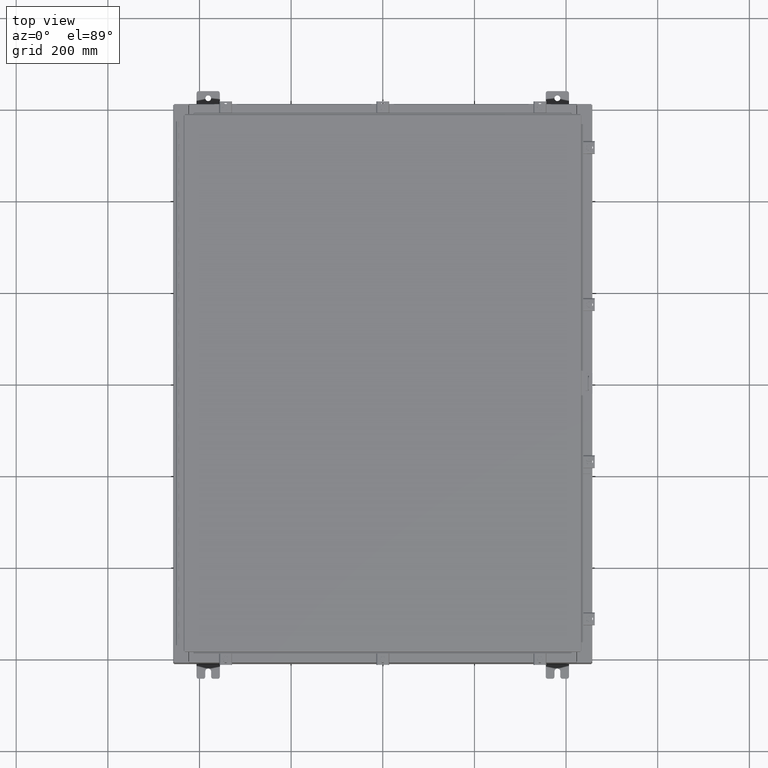
[diagram: clean part render]
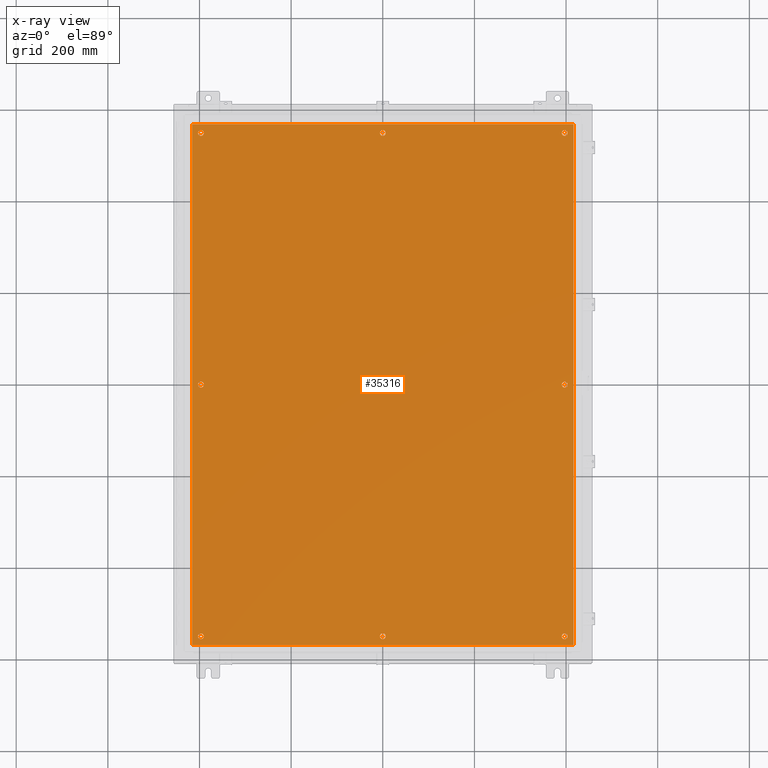
[diagram: x-ray — body ghosted, one internal face saturated and labeled with its STEP entity id]
A machine part, top view, then the same camera in x-ray: the body is ghosted and one INTERNAL B-rep face — a face not visible from any outside direction — is saturated and labeled: STEP entity #35316.
In plain terms, the highlighted planar face has unit normal (0, 0, -1).
Its self-contained STEP definition (entity closure, byte-faithful):
#610 = AXIS2_PLACEMENT_3D ( 'NONE', #8718, #38570, #13018 ) ;
#840 = CIRCLE ( 'NONE', #24710, 0.2499999999999987000 ) ;
#996 = ORIENTED_EDGE ( 'NONE', *, *, #33149, .T. ) ;
#1314 = AXIS2_PLACEMENT_3D ( 'NONE', #41533, #15989, #45883 ) ;
#1486 = DIRECTION ( 'NONE',  ( -1.000000000000000000, 0.0000000000000000000, 0.0000000000000000000 ) ) ;
#1511 = VERTEX_POINT ( 'NONE', #41468 ) ;
#2261 = CARTESIAN_POINT ( 'NONE',  ( 15.37500000000000500, -21.62500000000000400, -0.1040000000000000400 ) ) ;
#2413 = VERTEX_POINT ( 'NONE', #19910 ) ;
#2435 = EDGE_LOOP ( 'NONE', ( #25796, #27888 ) ) ;
#2675 = VERTEX_POINT ( 'NONE', #21924 ) ;
#2761 = DIRECTION ( 'NONE',  ( -0.0000000000000000000, -0.0000000000000000000, 1.000000000000000000 ) ) ;
#3116 = CARTESIAN_POINT ( 'NONE',  ( 15.62500000000000400, -21.62500000000000400, -0.1040000000000000400 ) ) ;
#3354 = ORIENTED_EDGE ( 'NONE', *, *, #4375, .T. ) ;
#3392 = ORIENTED_EDGE ( 'NONE', *, *, #46634, .T. ) ;
#4115 = ORIENTED_EDGE ( 'NONE', *, *, #7966, .F. ) ;
#4375 = EDGE_CURVE ( 'NONE', #52993, #14118, #15577, .T. ) ;
#4449 = AXIS2_PLACEMENT_3D ( 'NONE', #8026, #37884, #12323 ) ;
#6004 = ORIENTED_EDGE ( 'NONE', *, *, #40696, .F. ) ;
#6319 = CARTESIAN_POINT ( 'NONE',  ( 15.37500000000000000, 3.027752532102204900E-015, -0.1040000000000000400 ) ) ;
#6542 = DIRECTION ( 'NONE',  ( -0.0000000000000000000, -0.0000000000000000000, 1.000000000000000000 ) ) ;
#7005 = FACE_BOUND ( 'NONE', #51511, .T. ) ;
#7158 = VERTEX_POINT ( 'NONE', #23106 ) ;
#7402 = DIRECTION ( 'NONE',  ( -1.000000000000000000, 0.0000000000000000000, 0.0000000000000000000 ) ) ;
#7966 = EDGE_CURVE ( 'NONE', #1511, #7158, #32630, .T. ) ;
#8026 = CARTESIAN_POINT ( 'NONE',  ( 0.0000000000000000000, 0.0000000000000000000, -0.1040000000000000400 ) ) ;
#8055 = CIRCLE ( 'NONE', #28481, 0.2499999999999987000 ) ;
#8336 = VERTEX_POINT ( 'NONE', #52884 ) ;
#8461 = CARTESIAN_POINT ( 'NONE',  ( 0.2500000000000011700, -21.62500000000000400, -0.1040000000000000400 ) ) ;
#8510 = ORIENTED_EDGE ( 'NONE', *, *, #11018, .T. ) ;
#8705 = CARTESIAN_POINT ( 'NONE',  ( -0.2500000000000011700, -21.62500000000000400, -0.1040000000000000400 ) ) ;
#8718 = CARTESIAN_POINT ( 'NONE',  ( 15.62500000000000400, 21.62500000000000400, -0.1040000000000000400 ) ) ;
#9096 = CARTESIAN_POINT ( 'NONE',  ( 16.50000000000000700, 22.38300000000000300, -0.1040000000000009900 ) ) ;
#10294 = CARTESIAN_POINT ( 'NONE',  ( 0.0000000000000000000, -21.62500000000000400, -0.1040000000000000400 ) ) ;
#10697 = EDGE_CURVE ( 'NONE', #41998, #2675, #46167, .T. ) ;
#11018 = EDGE_CURVE ( 'NONE', #44184, #30400, #46816, .T. ) ;
#11133 = AXIS2_PLACEMENT_3D ( 'NONE', #10294, #40139, #14573 ) ;
#11225 = EDGE_CURVE ( 'NONE', #13128, #48782, #44752, .T. ) ;
#11231 = DIRECTION ( 'NONE',  ( -0.0000000000000000000, -0.0000000000000000000, 1.000000000000000000 ) ) ;
#11495 = CARTESIAN_POINT ( 'NONE',  ( -15.62500000000000500, 21.62500000000000400, -0.1040000000000000400 ) ) ;
#11683 = VERTEX_POINT ( 'NONE', #35888 ) ;
#11765 = LINE ( 'NONE', #9096, #23131 ) ;
#11860 = CARTESIAN_POINT ( 'NONE',  ( 15.87500000000000200, -21.62500000000000400, -0.1040000000000000400 ) ) ;
#12323 = DIRECTION ( 'NONE',  ( -1.000000000000000000, 0.0000000000000000000, -0.0000000000000000000 ) ) ;
#12398 = CIRCLE ( 'NONE', #23739, 0.2500000000000008900 ) ;
#12607 = VECTOR ( 'NONE', #45417, 39.37007874015748100 ) ;
#12899 = CARTESIAN_POINT ( 'NONE',  ( -15.62500000000000500, 21.62500000000000400, -0.1040000000000000400 ) ) ;
#13018 = DIRECTION ( 'NONE',  ( -1.000000000000000000, 0.0000000000000000000, 0.0000000000000000000 ) ) ;
#13070 = VERTEX_POINT ( 'NONE', #8705 ) ;
#13128 = VERTEX_POINT ( 'NONE', #26060 ) ;
#13291 = CARTESIAN_POINT ( 'NONE',  ( -15.62500000000000200, -8.298848852119578500E-016, -0.1040000000000000400 ) ) ;
#14118 = VERTEX_POINT ( 'NONE', #29694 ) ;
#14519 = CARTESIAN_POINT ( 'NONE',  ( 15.62500000000000400, 21.62500000000000400, -0.1040000000000000400 ) ) ;
#14573 = DIRECTION ( 'NONE',  ( -1.000000000000000000, 0.0000000000000000000, 0.0000000000000000000 ) ) ;
#15140 = CARTESIAN_POINT ( 'NONE',  ( 0.0000000000000000000, 21.62500000000000400, -0.1040000000000000400 ) ) ;
#15534 = CARTESIAN_POINT ( 'NONE',  ( 16.38300000000000600, -22.38300000000000300, -0.1040000000000008600 ) ) ;
#15577 = CIRCLE ( 'NONE', #610, 0.2499999999999987000 ) ;
#15797 = DIRECTION ( 'NONE',  ( -1.000000000000000000, 0.0000000000000000000, 0.0000000000000000000 ) ) ;
#15989 = DIRECTION ( 'NONE',  ( -0.0000000000000000000, -0.0000000000000000000, 1.000000000000000000 ) ) ;
#16967 = ORIENTED_EDGE ( 'NONE', *, *, #51983, .T. ) ;
#16988 = ORIENTED_EDGE ( 'NONE', *, *, #28294, .T. ) ;
#17179 = DIRECTION ( 'NONE',  ( -1.000000000000000000, 0.0000000000000000000, 0.0000000000000000000 ) ) ;
#17580 = DIRECTION ( 'NONE',  ( -1.000000000000000000, 0.0000000000000000000, 0.0000000000000000000 ) ) ;
#18280 = EDGE_CURVE ( 'NONE', #48782, #13128, #52221, .T. ) ;
#18343 = FACE_BOUND ( 'NONE', #41148, .T. ) ;
#18827 = DIRECTION ( 'NONE',  ( -1.000000000000000000, 0.0000000000000000000, 0.0000000000000000000 ) ) ;
#19064 = AXIS2_PLACEMENT_3D ( 'NONE', #32095, #6542, #36393 ) ;
#19457 = DIRECTION ( 'NONE',  ( -1.000000000000000000, 0.0000000000000000000, 0.0000000000000000000 ) ) ;
#19910 = CARTESIAN_POINT ( 'NONE',  ( -16.38299999999999600, -22.38300000000000300, -0.1040000000000009900 ) ) ;
#20151 = ORIENTED_EDGE ( 'NONE', *, *, #49994, .T. ) ;
#20227 = VERTEX_POINT ( 'NONE', #39741 ) ;
#21059 = EDGE_CURVE ( 'NONE', #2413, #1511, #37185, .T. ) ;
#21205 = CIRCLE ( 'NONE', #48691, 0.2499999999999987000 ) ;
#21358 = ORIENTED_EDGE ( 'NONE', *, *, #34859, .T. ) ;
#21893 = AXIS2_PLACEMENT_3D ( 'NONE', #28354, #2761, #32618 ) ;
#21924 = CARTESIAN_POINT ( 'NONE',  ( -15.37500000000000500, -21.62500000000000400, -0.1040000000000000400 ) ) ;
#22297 = CARTESIAN_POINT ( 'NONE',  ( 0.2499999999999998600, 21.62500000000000400, -0.1040000000000000400 ) ) ;
#22685 = CARTESIAN_POINT ( 'NONE',  ( 15.37500000000000500, 21.62500000000000400, -0.1040000000000000400 ) ) ;
#22919 = DIRECTION ( 'NONE',  ( -0.0000000000000000000, -0.0000000000000000000, 1.000000000000000000 ) ) ;
#23106 = CARTESIAN_POINT ( 'NONE',  ( 16.38300000000000600, 22.38300000000000300, -0.1040000000000008600 ) ) ;
#23131 = VECTOR ( 'NONE', #34627, 39.37007874015748100 ) ;
#23363 = ORIENTED_EDGE ( 'NONE', *, *, #11225, .T. ) ;
#23489 = AXIS2_PLACEMENT_3D ( 'NONE', #12899, #42733, #17179 ) ;
#23739 = AXIS2_PLACEMENT_3D ( 'NONE', #13291, #43143, #17580 ) ;
#24710 = AXIS2_PLACEMENT_3D ( 'NONE', #36804, #11231, #41070 ) ;
#25109 = EDGE_CURVE ( 'NONE', #46491, #11683, #49626, .T. ) ;
#25188 = CARTESIAN_POINT ( 'NONE',  ( -15.62500000000000400, -21.62500000000000400, -0.1040000000000000400 ) ) ;
#25320 = CARTESIAN_POINT ( 'NONE',  ( 15.62500000000000200, 2.997136362123521200E-015, -0.1040000000000000400 ) ) ;
#25796 = ORIENTED_EDGE ( 'NONE', *, *, #37311, .T. ) ;
#25850 = VECTOR ( 'NONE', #38094, 39.37007874015748100 ) ;
#25971 = EDGE_CURVE ( 'NONE', #30400, #44184, #46185, .T. ) ;
#26060 = CARTESIAN_POINT ( 'NONE',  ( -15.87500000000000700, 21.62500000000000400, -0.1040000000000000400 ) ) ;
#26267 = EDGE_LOOP ( 'NONE', ( #3392, #21358 ) ) ;
#26768 = AXIS2_PLACEMENT_3D ( 'NONE', #25188, #55075, #29472 ) ;
#26977 = EDGE_LOOP ( 'NONE', ( #20151, #50803 ) ) ;
#27078 = DIRECTION ( 'NONE',  ( -0.0000000000000000000, -0.0000000000000000000, 1.000000000000000000 ) ) ;
#27523 = AXIS2_PLACEMENT_3D ( 'NONE', #11495, #41328, #15797 ) ;
#27888 = ORIENTED_EDGE ( 'NONE', *, *, #33289, .T. ) ;
#28268 = LINE ( 'NONE', #41728, #42262 ) ;
#28294 = EDGE_CURVE ( 'NONE', #11683, #46491, #29897, .T. ) ;
#28354 = CARTESIAN_POINT ( 'NONE',  ( 15.62500000000000400, -21.62500000000000400, -0.1040000000000000400 ) ) ;
#28481 = AXIS2_PLACEMENT_3D ( 'NONE', #3116, #32969, #7402 ) ;
#29472 = DIRECTION ( 'NONE',  ( -1.000000000000000000, 0.0000000000000000000, 0.0000000000000000000 ) ) ;
#29603 = DIRECTION ( 'NONE',  ( -1.000000000000000000, 0.0000000000000000000, 0.0000000000000000000 ) ) ;
#29694 = CARTESIAN_POINT ( 'NONE',  ( 15.87500000000000200, 21.62500000000000400, -0.1040000000000000400 ) ) ;
#29708 = FACE_BOUND ( 'NONE', #2435, .T. ) ;
#29855 = EDGE_LOOP ( 'NONE', ( #40715, #8510 ) ) ;
#29897 = CIRCLE ( 'NONE', #48871, 0.2500000000000008900 ) ;
#30400 = VERTEX_POINT ( 'NONE', #22297 ) ;
#31039 = FACE_BOUND ( 'NONE', #35671, .T. ) ;
#31336 = VERTEX_POINT ( 'NONE', #33176 ) ;
#32095 = CARTESIAN_POINT ( 'NONE',  ( 0.0000000000000000000, -21.62500000000000400, -0.1040000000000000400 ) ) ;
#32238 = EDGE_LOOP ( 'NONE', ( #35159, #53727, #6004, #4115 ) ) ;
#32380 = FACE_BOUND ( 'NONE', #39172, .T. ) ;
#32618 = DIRECTION ( 'NONE',  ( -1.000000000000000000, 0.0000000000000000000, 0.0000000000000000000 ) ) ;
#32630 = LINE ( 'NONE', #15534, #12607 ) ;
#32969 = DIRECTION ( 'NONE',  ( -0.0000000000000000000, -0.0000000000000000000, 1.000000000000000000 ) ) ;
#33149 = EDGE_CURVE ( 'NONE', #14118, #52993, #21205, .T. ) ;
#33176 = CARTESIAN_POINT ( 'NONE',  ( -16.38299999999999600, 22.38300000000000300, -0.1040000000000008600 ) ) ;
#33289 = EDGE_CURVE ( 'NONE', #47702, #44756, #48554, .T. ) ;
#33409 = ORIENTED_EDGE ( 'NONE', *, *, #25109, .T. ) ;
#34627 = DIRECTION ( 'NONE',  ( -1.000000000000000000, -0.0000000000000000000, -0.0000000000000000000 ) ) ;
#34859 = EDGE_CURVE ( 'NONE', #8336, #20227, #12398, .T. ) ;
#34944 = ORIENTED_EDGE ( 'NONE', *, *, #18280, .T. ) ;
#35159 = ORIENTED_EDGE ( 'NONE', *, *, #21059, .F. ) ;
#35316 = ADVANCED_FACE ( 'NONE', ( #32380, #52454, #31039, #55119, #41011, #29708, #18343, #7005, #51124 ), #54899, .T. ) ;
#35510 = AXIS2_PLACEMENT_3D ( 'NONE', #15140, #45036, #19457 ) ;
#35643 = CARTESIAN_POINT ( 'NONE',  ( -15.37500000000000500, 21.62500000000000400, -0.1040000000000000400 ) ) ;
#35671 = EDGE_LOOP ( 'NONE', ( #16988, #33409 ) ) ;
#35819 = EDGE_CURVE ( 'NONE', #31336, #2413, #28268, .T. ) ;
#35842 = AXIS2_PLACEMENT_3D ( 'NONE', #25320, #55203, #29603 ) ;
#35888 = CARTESIAN_POINT ( 'NONE',  ( 15.87500000000000200, 2.997136362123521200E-015, -0.1040000000000000400 ) ) ;
#36393 = DIRECTION ( 'NONE',  ( -1.000000000000000000, 0.0000000000000000000, 0.0000000000000000000 ) ) ;
#36804 = CARTESIAN_POINT ( 'NONE',  ( -15.62500000000000400, -21.62500000000000400, -0.1040000000000000400 ) ) ;
#37185 = LINE ( 'NONE', #50845, #25850 ) ;
#37311 = EDGE_CURVE ( 'NONE', #44756, #47702, #8055, .T. ) ;
#37884 = DIRECTION ( 'NONE',  ( 0.0000000000000000000, 0.0000000000000000000, -1.000000000000000000 ) ) ;
#38011 = VERTEX_POINT ( 'NONE', #8461 ) ;
#38094 = DIRECTION ( 'NONE',  ( 1.000000000000000000, -0.0000000000000000000, -0.0000000000000000000 ) ) ;
#38570 = DIRECTION ( 'NONE',  ( -0.0000000000000000000, -0.0000000000000000000, 1.000000000000000000 ) ) ;
#39172 = EDGE_LOOP ( 'NONE', ( #44784, #16967 ) ) ;
#39741 = CARTESIAN_POINT ( 'NONE',  ( -15.37500000000000000, -8.298848852119578500E-016, -0.1040000000000000400 ) ) ;
#39979 = AXIS2_PLACEMENT_3D ( 'NONE', #48500, #22919, #52811 ) ;
#40139 = DIRECTION ( 'NONE',  ( -0.0000000000000000000, -0.0000000000000000000, 1.000000000000000000 ) ) ;
#40696 = EDGE_CURVE ( 'NONE', #7158, #31336, #11765, .T. ) ;
#40715 = ORIENTED_EDGE ( 'NONE', *, *, #25971, .T. ) ;
#41011 = FACE_BOUND ( 'NONE', #26977, .T. ) ;
#41070 = DIRECTION ( 'NONE',  ( -1.000000000000000000, 0.0000000000000000000, 0.0000000000000000000 ) ) ;
#41148 = EDGE_LOOP ( 'NONE', ( #996, #3354 ) ) ;
#41328 = DIRECTION ( 'NONE',  ( -0.0000000000000000000, -0.0000000000000000000, 1.000000000000000000 ) ) ;
#41468 = CARTESIAN_POINT ( 'NONE',  ( 16.38300000000000600, -22.38300000000000300, -0.1040000000000008600 ) ) ;
#41499 = EDGE_CURVE ( 'NONE', #38011, #13070, #52461, .T. ) ;
#41533 = CARTESIAN_POINT ( 'NONE',  ( -15.62500000000000200, -8.298848852119578500E-016, -0.1040000000000000400 ) ) ;
#41728 = CARTESIAN_POINT ( 'NONE',  ( -16.38299999999999600, 22.38300000000000300, -0.1040000000000008600 ) ) ;
#41998 = VERTEX_POINT ( 'NONE', #47617 ) ;
#42262 = VECTOR ( 'NONE', #50374, 39.37007874015748100 ) ;
#42733 = DIRECTION ( 'NONE',  ( -0.0000000000000000000, -0.0000000000000000000, 1.000000000000000000 ) ) ;
#43143 = DIRECTION ( 'NONE',  ( -0.0000000000000000000, -0.0000000000000000000, 1.000000000000000000 ) ) ;
#44184 = VERTEX_POINT ( 'NONE', #54873 ) ;
#44387 = DIRECTION ( 'NONE',  ( -0.0000000000000000000, -0.0000000000000000000, 1.000000000000000000 ) ) ;
#44701 = CIRCLE ( 'NONE', #19064, 0.2500000000000011700 ) ;
#44752 = CIRCLE ( 'NONE', #27523, 0.2500000000000008900 ) ;
#44756 = VERTEX_POINT ( 'NONE', #11860 ) ;
#44784 = ORIENTED_EDGE ( 'NONE', *, *, #41499, .T. ) ;
#45036 = DIRECTION ( 'NONE',  ( -0.0000000000000000000, -0.0000000000000000000, 1.000000000000000000 ) ) ;
#45417 = DIRECTION ( 'NONE',  ( 0.0000000000000000000, 1.000000000000000000, 0.0000000000000000000 ) ) ;
#45883 = DIRECTION ( 'NONE',  ( -1.000000000000000000, 0.0000000000000000000, 0.0000000000000000000 ) ) ;
#46167 = CIRCLE ( 'NONE', #26768, 0.2499999999999987000 ) ;
#46185 = CIRCLE ( 'NONE', #35510, 0.2499999999999998600 ) ;
#46491 = VERTEX_POINT ( 'NONE', #6319 ) ;
#46634 = EDGE_CURVE ( 'NONE', #20227, #8336, #53660, .T. ) ;
#46816 = CIRCLE ( 'NONE', #39979, 0.2499999999999998600 ) ;
#47617 = CARTESIAN_POINT ( 'NONE',  ( -15.87500000000000200, -21.62500000000000400, -0.1040000000000000400 ) ) ;
#47702 = VERTEX_POINT ( 'NONE', #2261 ) ;
#48500 = CARTESIAN_POINT ( 'NONE',  ( 0.0000000000000000000, 21.62500000000000400, -0.1040000000000000400 ) ) ;
#48554 = CIRCLE ( 'NONE', #21893, 0.2499999999999987000 ) ;
#48691 = AXIS2_PLACEMENT_3D ( 'NONE', #14519, #44387, #18827 ) ;
#48782 = VERTEX_POINT ( 'NONE', #35643 ) ;
#48871 = AXIS2_PLACEMENT_3D ( 'NONE', #52668, #27078, #1486 ) ;
#49626 = CIRCLE ( 'NONE', #35842, 0.2500000000000008900 ) ;
#49994 = EDGE_CURVE ( 'NONE', #2675, #41998, #840, .T. ) ;
#50374 = DIRECTION ( 'NONE',  ( 0.0000000000000000000, -1.000000000000000000, 0.0000000000000000000 ) ) ;
#50803 = ORIENTED_EDGE ( 'NONE', *, *, #10697, .T. ) ;
#50845 = CARTESIAN_POINT ( 'NONE',  ( -16.49999999999999600, -22.38300000000000300, -0.1040000000000009900 ) ) ;
#51124 = FACE_OUTER_BOUND ( 'NONE', #32238, .T. ) ;
#51511 = EDGE_LOOP ( 'NONE', ( #34944, #23363 ) ) ;
#51983 = EDGE_CURVE ( 'NONE', #13070, #38011, #44701, .T. ) ;
#52221 = CIRCLE ( 'NONE', #23489, 0.2500000000000008900 ) ;
#52454 = FACE_BOUND ( 'NONE', #29855, .T. ) ;
#52461 = CIRCLE ( 'NONE', #11133, 0.2500000000000011700 ) ;
#52668 = CARTESIAN_POINT ( 'NONE',  ( 15.62500000000000200, 2.997136362123521200E-015, -0.1040000000000000400 ) ) ;
#52811 = DIRECTION ( 'NONE',  ( -1.000000000000000000, 0.0000000000000000000, 0.0000000000000000000 ) ) ;
#52884 = CARTESIAN_POINT ( 'NONE',  ( -15.87500000000000200, -7.992687152332741600E-016, -0.1040000000000000400 ) ) ;
#52993 = VERTEX_POINT ( 'NONE', #22685 ) ;
#53660 = CIRCLE ( 'NONE', #1314, 0.2500000000000008900 ) ;
#53727 = ORIENTED_EDGE ( 'NONE', *, *, #35819, .F. ) ;
#54873 = CARTESIAN_POINT ( 'NONE',  ( -0.2499999999999998600, 21.62500000000000400, -0.1040000000000000400 ) ) ;
#54899 = PLANE ( 'NONE',  #4449 ) ;
#55075 = DIRECTION ( 'NONE',  ( -0.0000000000000000000, -0.0000000000000000000, 1.000000000000000000 ) ) ;
#55119 = FACE_BOUND ( 'NONE', #26267, .T. ) ;
#55203 = DIRECTION ( 'NONE',  ( -0.0000000000000000000, -0.0000000000000000000, 1.000000000000000000 ) ) ;